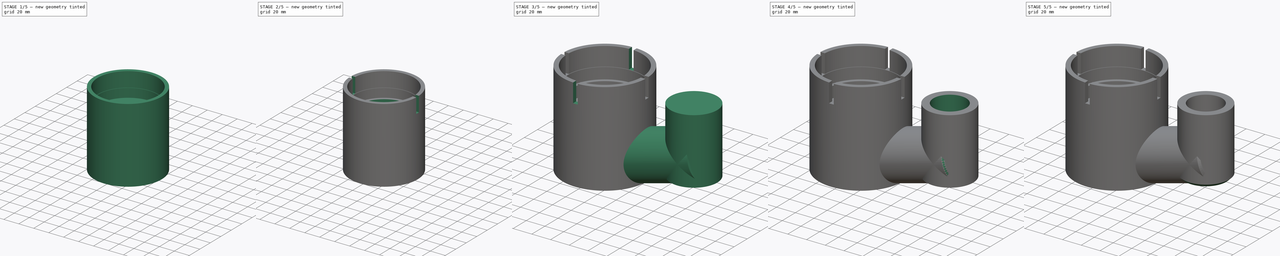
[diagram: build sequence overview — one tinted view per stage of 5, left to right]
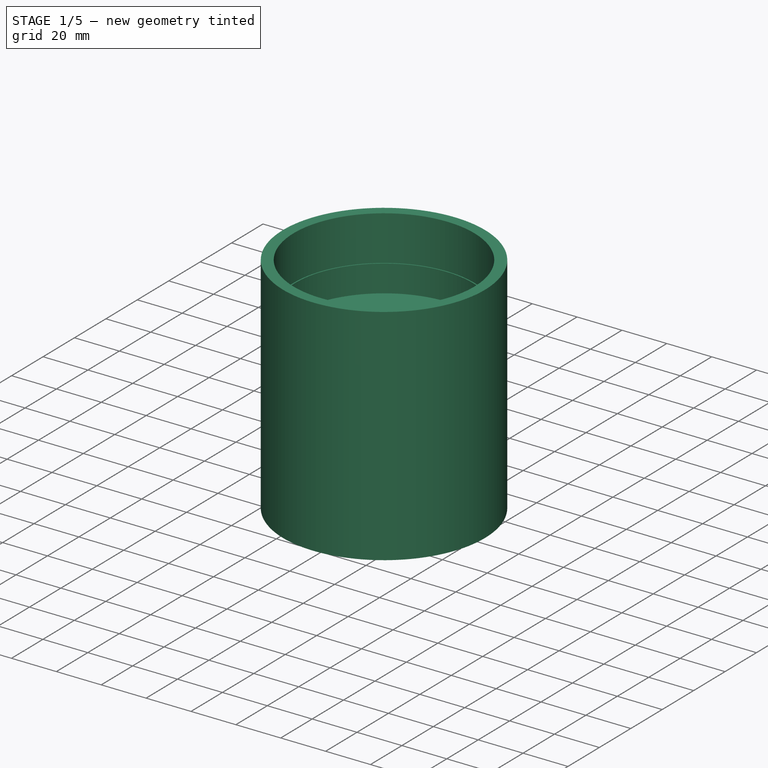
[diagram: stage 1 of 5 — iso view after this stage's code; geometry added in this stage tinted green]
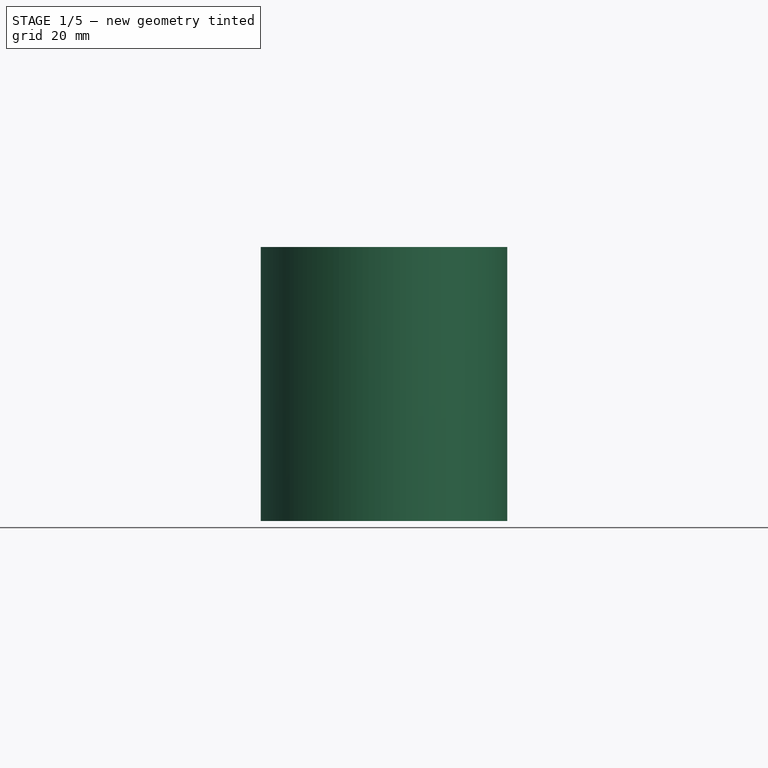
[diagram: stage 1 of 5 — front view after this stage's code; geometry added in this stage tinted green]
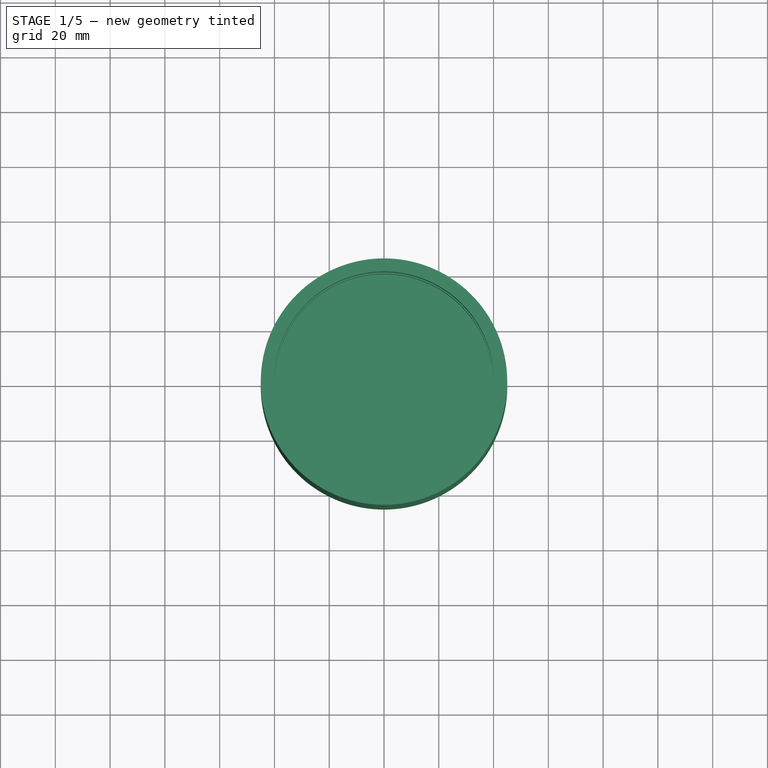
[diagram: stage 1 of 5 — top view after this stage's code; geometry added in this stage tinted green]
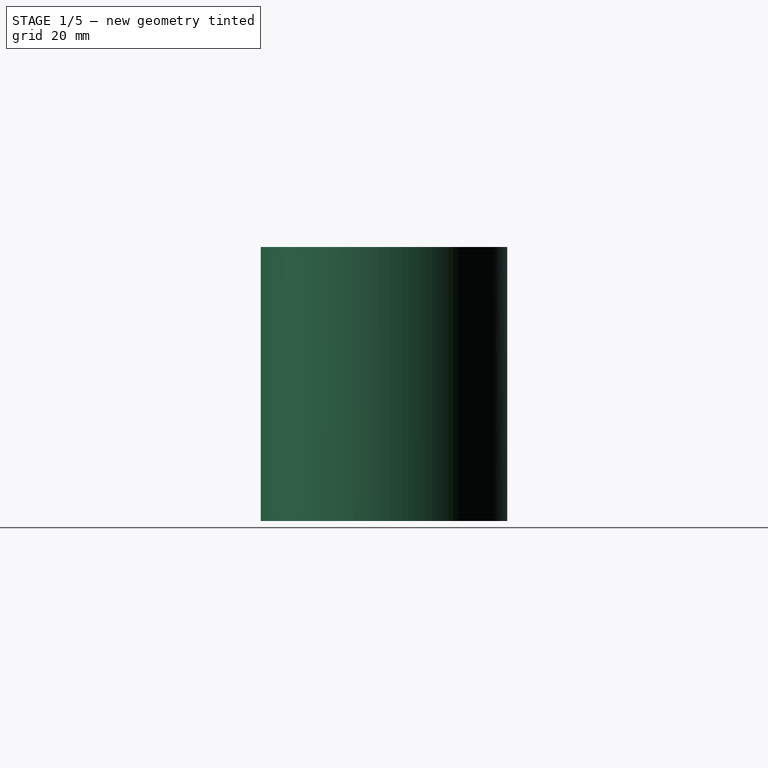
[diagram: stage 1 of 5 — right view after this stage's code; geometry added in this stage tinted green]
FCSTD DOCUMENT  (FreeCAD 0.20R29410 (Git))
Label: aspiration1
License: All rights reserved
LicenseURL: http://en.wikipedia.org/wiki/All_rights_reserved
objects: Sketcher::SketchObject×12, PartDesign::Pocket×9, PartDesign::Plane×4, PartDesign::Chamfer×4, PartDesign::Pad×3, PartDesign::Body×1
note: 49 computed .brp shape members not serialized (recipe doc carries the construction recipe); baked Part::Feature solids carry a one-line shape summary decoded from their .brp

FEATURE [Sketcher::SketchObject] Sketch
  FullyConstrained = true
  MapMode = 5
  Support = -> [XY_Plane]
  sketch-geometry (1):
    g0: Circle CenterX=0 CenterY=0 CenterZ=0 NormalX=0 NormalY=0 NormalZ=1 AngleXU=0 Radius=45
  constraints (2):
    c: Coincident(g0,g-1)
    c: Diameter(g0) = 90
FEATURE [PartDesign::Pad] Pad
  Direction = (0,0,1)
  Length = 100
  Length2 = 10
  Profile = -> Sketch
  ReferenceAxis = -> Sketch [N_Axis]
  Type = 0
FEATURE [Sketcher::SketchObject] Sketch001
  FullyConstrained = true
  MapMode = 5
  Placement = pos=(0,0,100) rot=(0,0,1;0rad)
  Support = -> [Pad]
  sketch-geometry (1):
    g0: Circle CenterX=0 CenterY=0 CenterZ=0 NormalX=0 NormalY=0 NormalZ=1 AngleXU=0 Radius=40.25
  constraints (2):
    c: Coincident(g0,g-1)
    c: Diameter(g0) = 80.5
FEATURE [PartDesign::Pocket] Pocket
  BaseFeature = -> Pad
  Direction = (0,0,-1)
  Length = 20
  Length2 = 5
  Profile = -> Sketch001
  ReferenceAxis = -> Sketch001 [N_Axis]
  Type = 0
FEATURE [Sketcher::SketchObject] Sketch002
  FullyConstrained = true
  MapMode = 5
  Placement = pos=(0,0,80) rot=(0,0,1;0rad)
  Support = -> [Pocket]
  sketch-geometry (1):
    g0: Circle CenterX=0 CenterY=0 CenterZ=0 NormalX=0 NormalY=0 NormalZ=1 AngleXU=0 Radius=39.75
  constraints (2):
    c: Coincident(g0,g-1)
    c: Diameter(g0) = 79.5
FEATURE [PartDesign::Pocket] Pocket001
  BaseFeature = -> Pocket
  Direction = (0,0,-1)
  Length = 12
  Length2 = 5
  Profile = -> Sketch002
  ReferenceAxis = -> Sketch002 [N_Axis]
  Type = 0
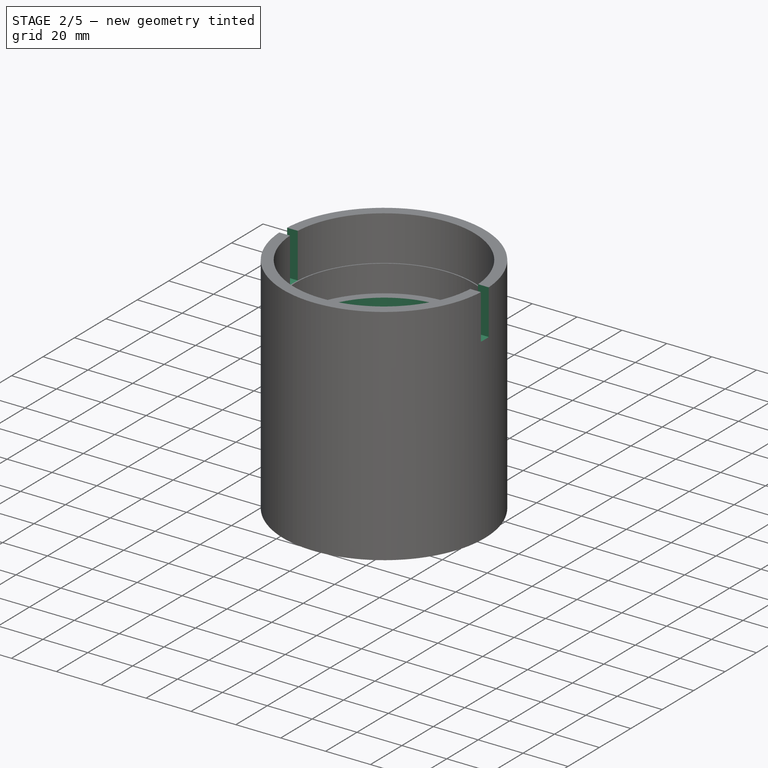
[diagram: stage 2 of 5 — iso view after this stage's code; geometry added in this stage tinted green]
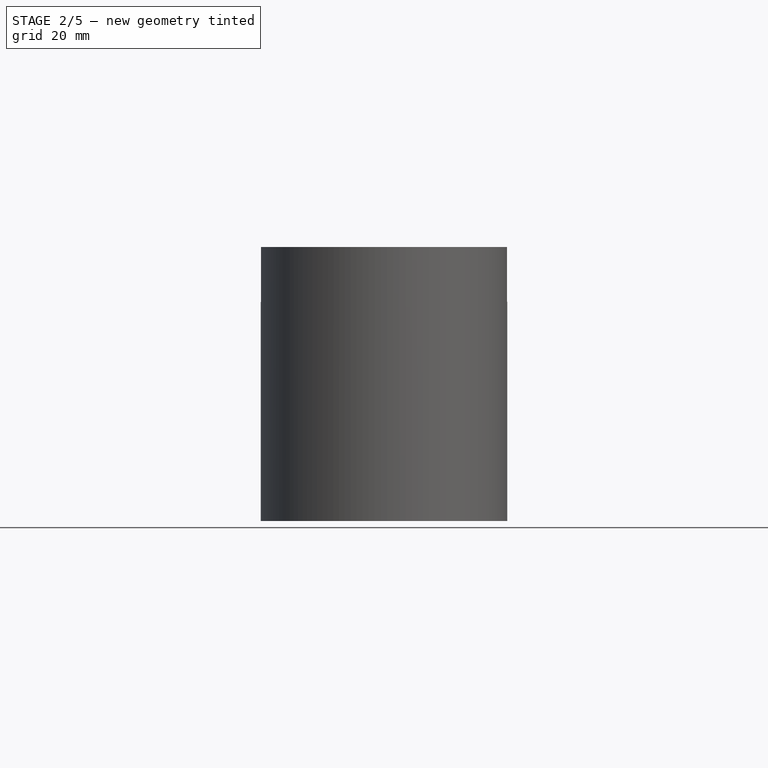
[diagram: stage 2 of 5 — front view after this stage's code; geometry added in this stage tinted green]
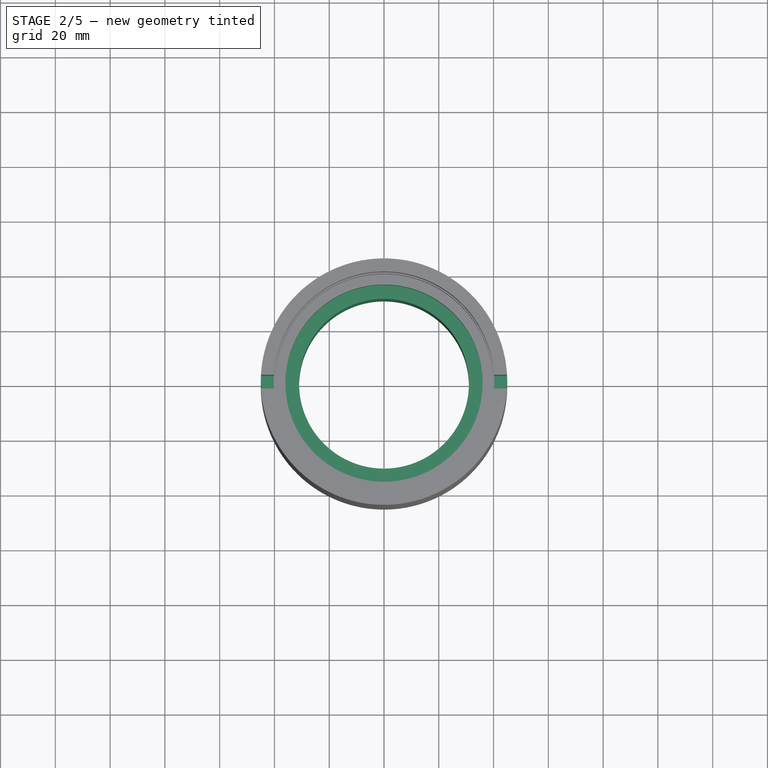
[diagram: stage 2 of 5 — top view after this stage's code; geometry added in this stage tinted green]
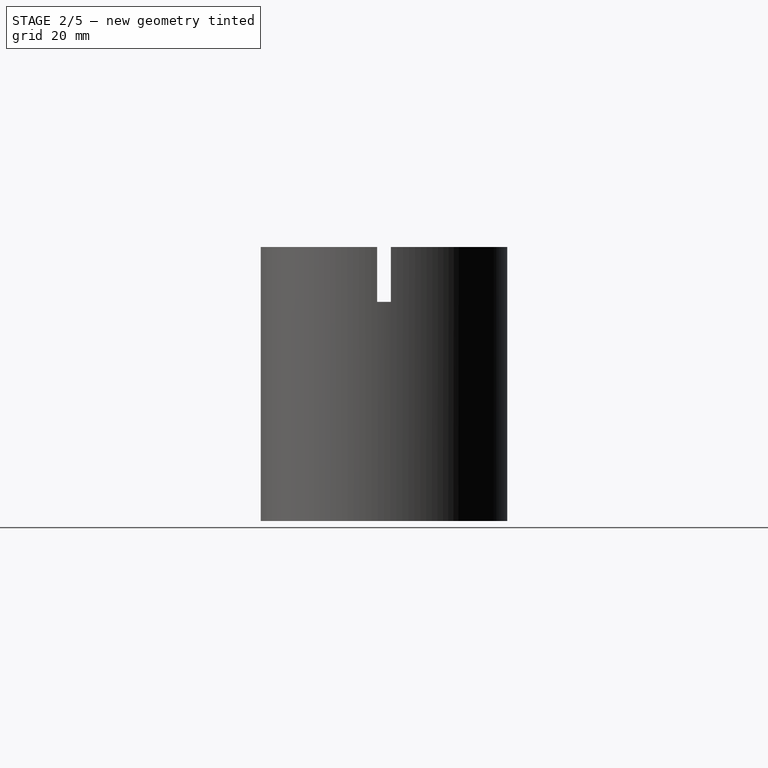
[diagram: stage 2 of 5 — right view after this stage's code; geometry added in this stage tinted green]
FEATURE [Sketcher::SketchObject] Sketch003
  FullyConstrained = true
  MapMode = 5
  Placement = pos=(0,0,68) rot=(0,0,1;0rad)
  Support = -> [Pocket001]
  sketch-geometry (1):
    g0: Circle CenterX=0 CenterY=0 CenterZ=0 NormalX=0 NormalY=0 NormalZ=1 AngleXU=0 Radius=36
  constraints (2):
    c: Coincident(g0,g-1)
    c: Diameter(g0) = 72
FEATURE [PartDesign::Pocket] Pocket002
  BaseFeature = -> Pocket001
  Direction = (0,0,-1)
  Length = 12
  Length2 = 5
  Profile = -> Sketch003
  ReferenceAxis = -> Sketch003 [N_Axis]
  Type = 0
FEATURE [Sketcher::SketchObject] Sketch004
  FullyConstrained = true
  MapMode = 5
  Placement = pos=(0,0,56) rot=(0,0,1;0rad)
  Support = -> [Pocket002]
  sketch-geometry (1):
    g0: Circle CenterX=0 CenterY=0 CenterZ=0 NormalX=0 NormalY=0 NormalZ=1 AngleXU=0 Radius=31
  constraints (2):
    c: Coincident(g0,g-1)
    c: Diameter(g0) = 62
FEATURE [PartDesign::Pocket] Pocket003
  BaseFeature = -> Pocket002
  Direction = (0,0,-1)
  Length = 5
  Length2 = 5
  Profile = -> Sketch004
  ReferenceAxis = -> Sketch004 [N_Axis]
  Type = 1
FEATURE [PartDesign::Plane] DatumPlane
  Length = 111.213
  MapMode = 10
  Placement = pos=(45,0,100) rot=(0.57735,0.57735,0.57735;2.0944rad)
  ResizeMode = 0
  Support = -> [Pocket003]
  Width = 146.213
FEATURE [Sketcher::SketchObject] Sketch005
  FullyConstrained = true
  MapMode = 5
  Placement = pos=(45,0,100) rot=(0.57735,0.57735,0.57735;2.0944rad)
  Support = -> [DatumPlane]
  sketch-geometry (4):
    g0: LineSegment StartX=-2.5 StartY=0 StartZ=0 EndX=2.5 EndY=0 EndZ=0
    g1: LineSegment StartX=2.5 StartY=0 StartZ=0 EndX=2.5 EndY=-20 EndZ=0
    g2: LineSegment StartX=2.5 StartY=-20 StartZ=0 EndX=-2.5 EndY=-20 EndZ=0
    g3: LineSegment StartX=-2.5 StartY=-20 StartZ=0 EndX=-2.5 EndY=0 EndZ=0
  constraints (11):
    c: Coincident(g0,g1)
    c: Coincident(g1,g2)
    c: Coincident(g2,g3)
    c: Coincident(g3,g0)
    c: Horizontal(g2)
    c: Vertical(g1)
    c: Vertical(g3)
    c: PointOnObject(g0,g-1)
    c: Symmetric(g0,g0,g-2)
    c: DistanceX(g2,g2) = 5
    c: DistanceY(g1,g1) = 20
FEATURE [PartDesign::Pocket] Pocket004
  BaseFeature = -> Pocket003
  Direction = (-1,0,0)
  Length = 5
  Length2 = 5
  Profile = -> Sketch005
  ReferenceAxis = -> Sketch005 [N_Axis]
  Type = 1
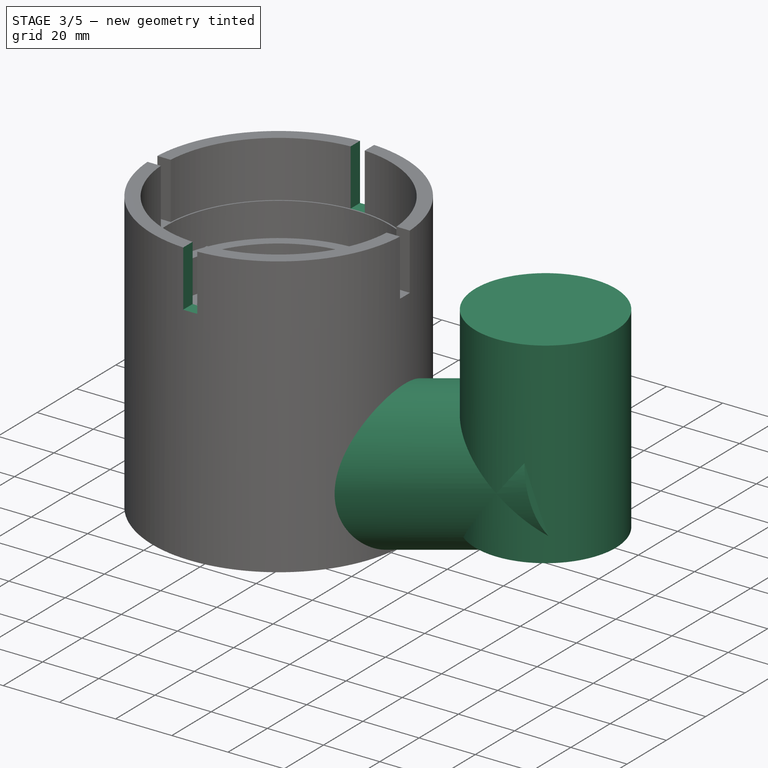
[diagram: stage 3 of 5 — iso view after this stage's code; geometry added in this stage tinted green]
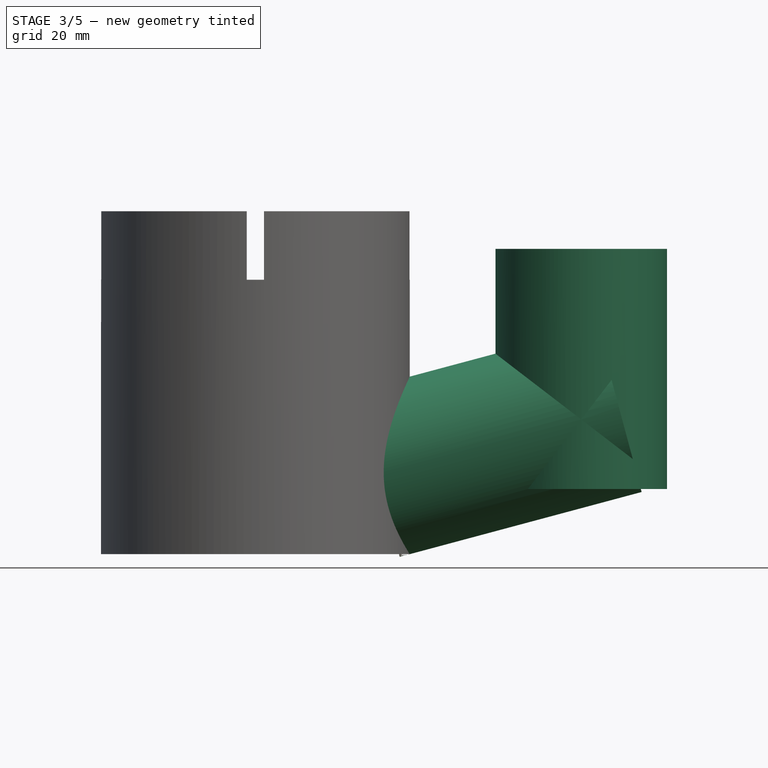
[diagram: stage 3 of 5 — front view after this stage's code; geometry added in this stage tinted green]
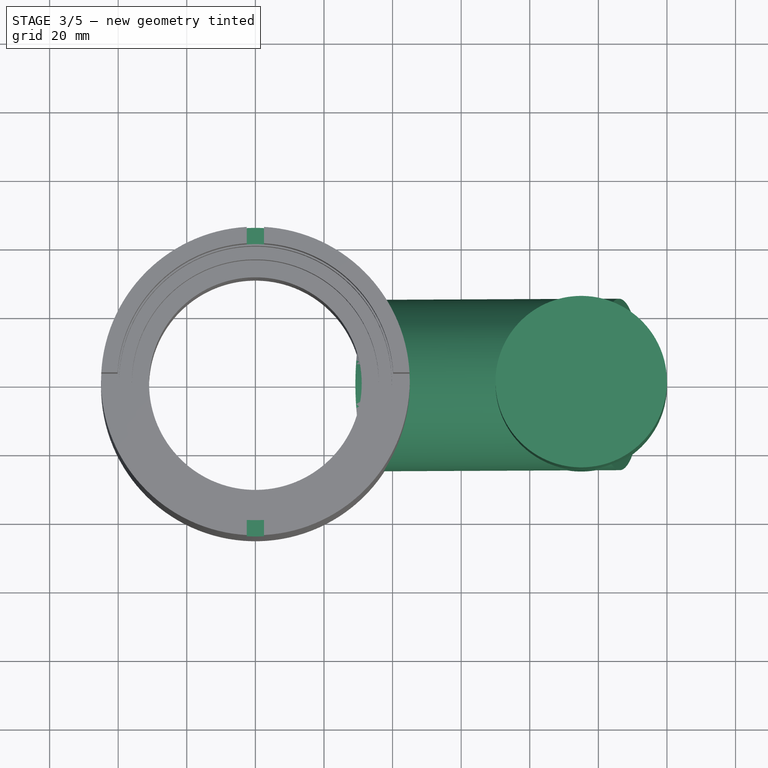
[diagram: stage 3 of 5 — top view after this stage's code; geometry added in this stage tinted green]
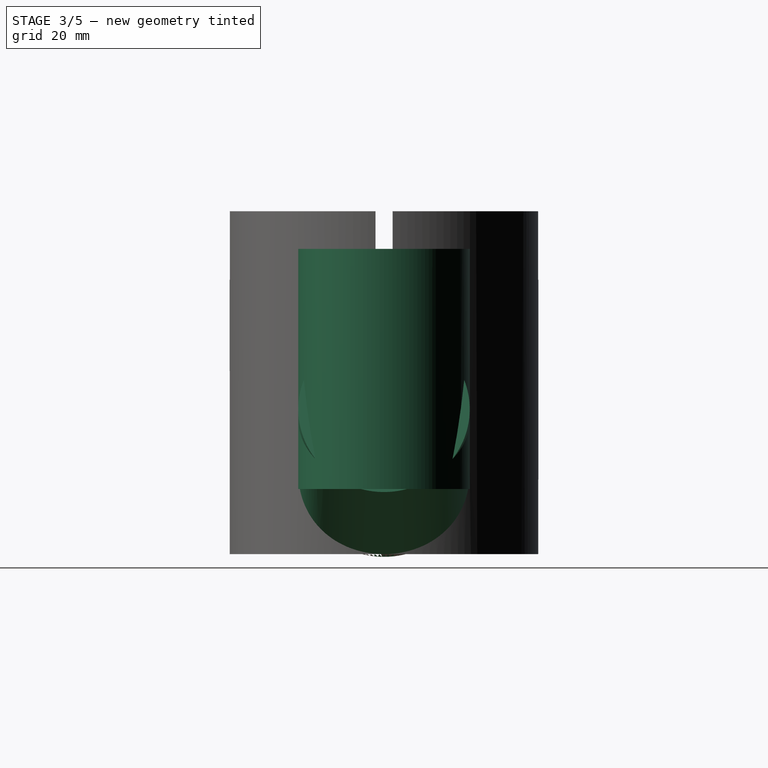
[diagram: stage 3 of 5 — right view after this stage's code; geometry added in this stage tinted green]
FEATURE [PartDesign::Plane] DatumPlane001
  AttachmentOffset = pos=(45,0,0) rot=(0,1,0;1.5708rad)
  Length = 193.723
  MapMode = 5
  Placement = pos=(45,-45,100) rot=(1,0,0;1.5708rad)
  ResizeMode = 0
  Support = -> [DatumPlane]
  Width = 153.723
FEATURE [Sketcher::SketchObject] Sketch006
  FullyConstrained = true
  MapMode = 5
  Placement = pos=(45,-45,100) rot=(1,0,0;1.5708rad)
  Support = -> [DatumPlane001]
  sketch-geometry (4):
    g0: LineSegment StartX=-47.5 StartY=0 StartZ=0 EndX=-42.5 EndY=0 EndZ=0
    g1: LineSegment StartX=-42.5 StartY=0 StartZ=0 EndX=-42.5 EndY=-20 EndZ=0
    g2: LineSegment StartX=-42.5 StartY=-20 StartZ=0 EndX=-47.5 EndY=-20 EndZ=0
    g3: LineSegment StartX=-47.5 StartY=-20 StartZ=0 EndX=-47.5 EndY=0 EndZ=0
  constraints (12):
    c: Coincident(g0,g1)
    c: Coincident(g1,g2)
    c: Coincident(g2,g3)
    c: Coincident(g3,g0)
    c: Horizontal(g0)
    c: Horizontal(g2)
    c: Vertical(g1)
    c: Vertical(g3)
    c: PointOnObject(g0,g-1)
    c: DistanceX(g0,g0) = 5
    c: DistanceY(g1,g1) = 20
    c: DistanceX(g0,g-1) = 42.5
FEATURE [PartDesign::Pocket] Pocket005
  BaseFeature = -> Pocket004
  Direction = (2e-16,1,2e-16)
  Length = 5
  Length2 = 5
  Profile = -> Sketch006
  ReferenceAxis = -> Sketch006 [N_Axis]
  Type = 1
FEATURE [PartDesign::Plane] DatumPlane002
  AttachmentOffset = pos=(0,0,0) rot=(-1,0,0;0.261799rad)
  Length = 114.257
  MapMode = 10
  Placement = pos=(45,0,0) rot=(0.519988,0.519988,0.677661;1.95044rad)
  ResizeMode = 0
  Support = -> [Pocket005]
  Width = 187.703
FEATURE [Sketcher::SketchObject] Sketch007
  FullyConstrained = true
  MapMode = 5
  Placement = pos=(45,0,-1.8e-15) rot=(0.519988,0.519988,0.677661;1.95044rad)
  Support = -> [DatumPlane002]
  sketch-geometry (1):
    g0: Circle CenterX=0 CenterY=25 CenterZ=0 NormalX=0 NormalY=0 NormalZ=1 AngleXU=0 Radius=25
  constraints (3):
    c: PointOnObject(g0,g-2)
    c: PointOnObject(g-1,g0)
    c: Diameter(g0) = 50
FEATURE [PartDesign::Pad] Pad001
  BaseFeature = -> Pocket005
  Direction = (0.965926,-1e-16,0.258819)
  Length = 70
  Length2 = 3
  Profile = -> Sketch007
  ReferenceAxis = -> Sketch007 [N_Axis]
  Type = 4
FEATURE [PartDesign::Plane] DatumPlane003
  AttachmentOffset = pos=(0,0,-19) rot=(0,0,1;0rad)
  Length = 189.372
  MapMode = 5
  Placement = pos=(0,0,19) rot=(1,0,0;3.14159rad)
  ResizeMode = 0
  Support = -> [Pad001]
  Width = 114.372
FEATURE [Sketcher::SketchObject] Sketch009
  FullyConstrained = true
  MapMode = 5
  Placement = pos=(0,0,19) rot=(1,0,0;3.14159rad)
  Support = -> [DatumPlane003]
  sketch-geometry (1):
    g0: Circle CenterX=95 CenterY=0 CenterZ=0 NormalX=0 NormalY=0 NormalZ=1 AngleXU=0 Radius=25
  constraints (3):
    c: PointOnObject(g0,g-1)
    c: Diameter(g0) = 50
    c: DistanceX(g-1,g0) = 95
FEATURE [PartDesign::Pad] Pad002
  BaseFeature = -> Pad001
  Direction = (0,0,-1)
  Length = 70
  Length2 = 10
  Profile = -> Sketch009
  ReferenceAxis = -> Sketch009 [N_Axis]
  Reversed = true
  Type = 0
FEATURE [Sketcher::SketchObject] Sketch012
  FullyConstrained = true
  MapMode = 5
  Placement = pos=(0,0,0) rot=(1,0,0;3.14159rad)
  sketch-geometry (89):
    g0: Circle CenterX=0 CenterY=41.5 CenterZ=0 NormalX=0 NormalY=0 NormalZ=1 AngleXU=0 Radius=1.5
    g1: Circle CenterX=0 CenterY=0 CenterZ=0 NormalX=0 NormalY=0 NormalZ=1 AngleXU=0 Radius=41.5
    g2: Circle CenterX=0 CenterY=0 CenterZ=0 NormalX=0 NormalY=0 NormalZ=1 AngleXU=0 Radius=35
    g3: Circle CenterX=5.9843 CenterY=41.0663 CenterZ=0 NormalX=0 NormalY=0 NormalZ=1 AngleXU=0 Radius=1.5
    g4: Circle CenterX=11.8435 CenterY=39.7741 CenterZ=0 NormalX=0 NormalY=0 NormalZ=1 AngleXU=0 Radius=1.5
    g5: Circle CenterX=17.4552 CenterY=37.6506 CenterZ=0 NormalX=0 NormalY=0 NormalZ=1 AngleXU=0 Radius=1.5
    g6: Circle CenterX=22.702 CenterY=34.7401 CenterZ=0 NormalX=0 NormalY=0 NormalZ=1 AngleXU=0 Radius=1.5
    g7: Circle CenterX=27.4742 CenterY=31.1033 CenterZ=0 NormalX=0 NormalY=0 NormalZ=1 AngleXU=0 Radius=1.5
    g8: Circle CenterX=31.6722 CenterY=26.8165 CenterZ=0 NormalX=0 NormalY=0 NormalZ=1 AngleXU=0 Radius=1.5
    g9: Circle CenterX=35.2081 CenterY=21.9691 CenterZ=0 NormalX=0 NormalY=0 NormalZ=1 AngleXU=0 Radius=1.5
    g10: Circle CenterX=38.008 CenterY=16.6625 CenterZ=0 NormalX=0 NormalY=0 NormalZ=1 AngleXU=0 Radius=1.5
    g11: Circle CenterX=40.0135 CenterY=11.0076 CenterZ=0 NormalX=0 NormalY=0 NormalZ=1 AngleXU=0 Radius=1.5
    g12: Circle CenterX=41.1826 CenterY=5.12257 CenterZ=0 NormalX=0 NormalY=0 NormalZ=1 AngleXU=0 Radius=1.5
    g13: Circle CenterX=41.4909 CenterY=-0.869507 CenterZ=0 NormalX=0 NormalY=0 NormalZ=1 AngleXU=0 Radius=1.5
    g14: Circle CenterX=40.9319 CenterY=-6.84341 CenterZ=0 NormalX=0 NormalY=0 NormalZ=1 AngleXU=0 Radius=1.5
    g15: Circle CenterX=39.5173 CenterY=-12.6743 CenterZ=0 NormalX=0 NormalY=0 NormalZ=1 AngleXU=0 Radius=1.5
    g16: Circle CenterX=37.2766 CenterY=-18.2402 CenterZ=0 NormalX=0 NormalY=0 NormalZ=1 AngleXU=0 Radius=1.5
    g17: Circle CenterX=34.2568 CenterY=-23.4248 CenterZ=0 NormalX=0 NormalY=0 NormalZ=1 AngleXU=0 Radius=1.5
    g18: Circle CenterX=30.5209 CenterY=-28.1198 CenterZ=0 NormalX=0 NormalY=0 NormalZ=1 AngleXU=0 Radius=1.5
    g19: Circle CenterX=26.147 CenterY=-32.2271 CenterZ=0 NormalX=0 NormalY=0 NormalZ=1 AngleXU=0 Radius=1.5
    g20: Circle CenterX=21.2266 CenterY=-35.6606 CenterZ=0 NormalX=0 NormalY=0 NormalZ=1 AngleXU=0 Radius=1.5
    g21: Circle CenterX=15.8625 CenterY=-38.3488 CenterZ=0 NormalX=0 NormalY=0 NormalZ=1 AngleXU=0 Radius=1.5
    g22: Circle CenterX=10.1668 CenterY=-40.2354 CenterZ=0 NormalX=0 NormalY=0 NormalZ=1 AngleXU=0 Radius=1.5
    g23: Circle CenterX=4.25859 CenterY=-41.2809 CenterZ=0 NormalX=0 NormalY=0 NormalZ=1 AngleXU=0 Radius=1.5
    g24: Circle CenterX=-1.73863 CenterY=-41.4636 CenterZ=0 NormalX=0 NormalY=0 NormalZ=1 AngleXU=0 Radius=1.5
    g25: Circle CenterX=-7.69951 CenterY=-40.7795 CenterZ=0 NormalX=0 NormalY=0 NormalZ=1 AngleXU=0 Radius=1.5
    g26: Circle CenterX=-13.4994 CenterY=-39.243 CenterZ=0 NormalX=0 NormalY=0 NormalZ=1 AngleXU=0 Radius=1.5
    g27: Circle CenterX=2 CenterY=34.9428 CenterZ=0 NormalX=0 NormalY=0 NormalZ=1 AngleXU=0 Radius=1.5
    g28: Circle CenterX=6.95867 CenterY=34.3013 CenterZ=0 NormalX=0 NormalY=0 NormalZ=1 AngleXU=0 Radius=1.5
    g29: Circle CenterX=12.715 CenterY=32.6087 CenterZ=0 NormalX=0 NormalY=0 NormalZ=1 AngleXU=0 Radius=1.5
    g30: Circle CenterX=17.2317 CenterY=30.4642 CenterZ=0 NormalX=0 NormalY=0 NormalZ=1 AngleXU=0 Radius=1.5
    g31: Circle CenterX=22.1818 CenterY=27.0734 CenterZ=0 NormalX=0 NormalY=0 NormalZ=1 AngleXU=0 Radius=1.5
    g32: Circle CenterX=25.8132 CenterY=23.6364 CenterZ=0 NormalX=0 NormalY=0 NormalZ=1 AngleXU=0 Radius=1.5
    g33: Circle CenterX=28.9178 CenterY=19.7171 CenterZ=0 NormalX=0 NormalY=0 NormalZ=1 AngleXU=0 Radius=1.5
    g34: Circle CenterX=31.4322 CenterY=15.3953 CenterZ=0 NormalX=0 NormalY=0 NormalZ=1 AngleXU=0 Radius=1.5
    g35: Circle CenterX=33.3052 CenterY=10.7594 CenterZ=0 NormalX=0 NormalY=0 NormalZ=1 AngleXU=0 Radius=1.5
    g36: Circle CenterX=34.4985 CenterY=5.90385 CenterZ=0 NormalX=0 NormalY=0 NormalZ=1 AngleXU=0 Radius=1.5
    g37: Circle CenterX=34.9877 CenterY=0.927838 CenterZ=0 NormalX=0 NormalY=0 NormalZ=1 AngleXU=0 Radius=1.5
    g38: Circle CenterX=34.7629 CenterY=-4.06711 CenterZ=0 NormalX=0 NormalY=0 NormalZ=1 AngleXU=0 Radius=1.5
    g39: Circle CenterX=33.8286 CenterY=-8.97905 CenterZ=0 NormalX=0 NormalY=0 NormalZ=1 AngleXU=0 Radius=1.5
    g40: Circle CenterX=32.204 CenterY=-13.7077 CenterZ=0 NormalX=0 NormalY=0 NormalZ=1 AngleXU=0 Radius=1.5
    g41: Circle CenterX=29.9221 CenterY=-18.1567 CenterZ=0 NormalX=0 NormalY=0 NormalZ=1 AngleXU=0 Radius=1.5
    g42: Circle CenterX=27.0296 CenterY=-22.2351 CenterZ=0 NormalX=0 NormalY=0 NormalZ=1 AngleXU=0 Radius=1.5
    g43: Circle CenterX=23.5855 CenterY=-25.8597 CenterZ=0 NormalX=0 NormalY=0 NormalZ=1 AngleXU=0 Radius=1.5
    g44: Circle CenterX=19.66 CenterY=-28.9566 CenterZ=0 NormalX=0 NormalY=0 NormalZ=1 AngleXU=0 Radius=1.5
    g45: Circle CenterX=14.4254 CenterY=-31.889 CenterZ=0 NormalX=0 NormalY=0 NormalZ=1 AngleXU=0 Radius=1.5
    g46: Circle CenterX=9.73428 CenterY=-33.6191 CenterZ=0 NormalX=0 NormalY=0 NormalZ=1 AngleXU=0 Radius=1.5
    g47: Circle CenterX=4.84449 CenterY=-34.6631 CenterZ=0 NormalX=0 NormalY=0 NormalZ=1 AngleXU=0 Radius=1.5
    g48: Circle CenterX=-0.144168 CenterY=-34.9997 CenterZ=0 NormalX=0 NormalY=0 NormalZ=1 AngleXU=0 Radius=1.5
    g49: Circle CenterX=-5.12988 CenterY=-34.622 CenterZ=0 NormalX=0 NormalY=0 NormalZ=1 AngleXU=0 Radius=1.5
    g50: Circle CenterX=-10.0109 CenterY=-33.5378 CenterZ=0 NormalX=0 NormalY=0 NormalZ=1 AngleXU=0 Radius=1.5
    g51: Circle CenterX=-19.0172 CenterY=-36.8863 CenterZ=0 NormalX=0 NormalY=0 NormalZ=1 AngleXU=0 Radius=1.5
    g52: Circle CenterX=-24.1374 CenterY=-33.7585 CenterZ=0 NormalX=0 NormalY=0 NormalZ=1 AngleXU=0 Radius=1.5
    g53: Circle CenterX=-28.7531 CenterY=-29.925 CenterZ=0 NormalX=0 NormalY=0 NormalZ=1 AngleXU=0 Radius=1.5
    g54: Circle CenterX=-32.7678 CenterY=-25.4661 CenterZ=0 NormalX=0 NormalY=0 NormalZ=1 AngleXU=0 Radius=1.5
    g55: Circle CenterX=-36.0976 CenterY=-20.4748 CenterZ=0 NormalX=0 NormalY=0 NormalZ=1 AngleXU=0 Radius=1.5
    g56: Circle CenterX=-38.6728 CenterY=-15.0555 CenterZ=0 NormalX=0 NormalY=0 NormalZ=1 AngleXU=0 Radius=1.5
    g57: Circle CenterX=-40.4396 CenterY=-9.32155 CenterZ=0 NormalX=0 NormalY=0 NormalZ=1 AngleXU=0 Radius=1.5
    g58: Circle CenterX=-41.3611 CenterY=-3.39273 CenterZ=0 NormalX=0 NormalY=0 NormalZ=1 AngleXU=0 Radius=1.5
    g59: Circle CenterX=-41.418 CenterY=2.607 CenterZ=0 NormalX=0 NormalY=0 NormalZ=1 AngleXU=0 Radius=1.5
    g60: Circle CenterX=-33.2453 CenterY=24.8395 CenterZ=0 NormalX=0 NormalY=0 NormalZ=1 AngleXU=0 Radius=1.5
    g61: Circle CenterX=-40.6092 CenterY=8.55223 CenterZ=0 NormalX=0 NormalY=0 NormalZ=1 AngleXU=0 Radius=1.5
    g62: Circle CenterX=-38.9516 CenterY=14.3187 CenterZ=0 NormalX=0 NormalY=0 NormalZ=1 AngleXU=0 Radius=1.5
    g63: Circle CenterX=-36.4797 CenterY=19.7859 CenterZ=0 NormalX=0 NormalY=0 NormalZ=1 AngleXU=0 Radius=1.5
    g64: Circle CenterX=-29.316 CenterY=29.3738 CenterZ=0 NormalX=0 NormalY=0 NormalZ=1 AngleXU=0 Radius=1.5
    g65: Circle CenterX=-24.7739 CenterY=33.2942 CenterZ=0 NormalX=0 NormalY=0 NormalZ=1 AngleXU=0 Radius=1.5
    g66: Circle CenterX=-14.6876 CenterY=-31.7691 CenterZ=0 NormalX=0 NormalY=0 NormalZ=1 AngleXU=0 Radius=1.5
    g67: Circle CenterX=-19.0646 CenterY=-29.352 CenterZ=0 NormalX=0 NormalY=0 NormalZ=1 AngleXU=0 Radius=1.5
    g68: Circle CenterX=-23.0525 CenterY=-26.336 CenterZ=0 NormalX=0 NormalY=0 NormalZ=1 AngleXU=0 Radius=1.5
    g69: Circle CenterX=-26.5699 CenterY=-22.7824 CenterZ=0 NormalX=0 NormalY=0 NormalZ=1 AngleXU=0 Radius=1.5
    g70: Circle CenterX=-29.5451 CenterY=-18.7639 CenterZ=0 NormalX=0 NormalY=0 NormalZ=1 AngleXU=0 Radius=1.5
    g71: Circle CenterX=-31.9174 CenterY=-14.3625 CenterZ=0 NormalX=0 NormalY=0 NormalZ=1 AngleXU=0 Radius=1.5
    g72: Circle CenterX=-33.6382 CenterY=-9.66798 CenterZ=0 NormalX=0 NormalY=0 NormalZ=1 AngleXU=0 Radius=1.5
    g73: Circle CenterX=-34.7952 CenterY=-3.78059 CenterZ=0 NormalX=0 NormalY=0 NormalZ=1 AngleXU=0 Radius=1.5
    g74: Circle CenterX=-34.9789 CenterY=1.21604 CenterZ=0 NormalX=0 NormalY=0 NormalZ=1 AngleXU=0 Radius=1.5
    g75: Circle CenterX=-34.4487 CenterY=6.18785 CenterZ=0 NormalX=0 NormalY=0 NormalZ=1 AngleXU=0 Radius=1.5
    g76: Circle CenterX=-33.2154 CenterY=11.0334 CenterZ=0 NormalX=0 NormalY=0 NormalZ=1 AngleXU=0 Radius=1.5
    g77: Circle CenterX=-31.3043 CenterY=15.6537 CenterZ=0 NormalX=0 NormalY=0 NormalZ=1 AngleXU=0 Radius=1.5
    g78: Circle CenterX=-28.7544 CenterY=19.9546 CenterZ=0 NormalX=0 NormalY=0 NormalZ=1 AngleXU=0 Radius=1.5
    g79: Circle CenterX=-19.714 CenterY=36.5186 CenterZ=0 NormalX=0 NormalY=0 NormalZ=1 AngleXU=0 Radius=1.5
    g80: Circle CenterX=-14.2419 CenterY=38.9797 CenterZ=0 NormalX=0 NormalY=0 NormalZ=1 AngleXU=0 Radius=1.5
    g81: Circle CenterX=-8.47221 CenterY=40.626 CenterZ=0 NormalX=0 NormalY=0 NormalZ=1 AngleXU=0 Radius=1.5
    g82: Circle CenterX=-4.02365 CenterY=41.3045 CenterZ=0 NormalX=0 NormalY=0 NormalZ=1 AngleXU=0 Radius=1.5
    g83: Circle CenterX=-25.9698 CenterY=23.4642 CenterZ=0 NormalX=0 NormalY=0 NormalZ=1 AngleXU=0 Radius=1.5
    g84: Circle CenterX=-22.4769 CenterY=26.8289 CenterZ=0 NormalX=0 NormalY=0 NormalZ=1 AngleXU=0 Radius=1.5
    g85: Circle CenterX=-18.3222 CenterY=29.8211 CenterZ=0 NormalX=0 NormalY=0 NormalZ=1 AngleXU=0 Radius=1.5
    g86: Circle CenterX=-14.0973 CenterY=32.0354 CenterZ=0 NormalX=0 NormalY=0 NormalZ=1 AngleXU=0 Radius=1.5
    g87: Circle CenterX=-9.51413 CenterY=33.6821 CenterZ=0 NormalX=0 NormalY=0 NormalZ=1 AngleXU=0 Radius=1.5
    g88: Circle CenterX=-4.12013 CenterY=34.7566 CenterZ=0 NormalX=0 NormalY=0 NormalZ=1 AngleXU=0 Radius=1.5
  constraints (265):
    c: Diameter(g0) = 3
    c: Coincident(g1,g-1)
    c: Coincident(g2,g1)
    c: Diameter(g1) = 83
    c: Diameter(g2) = 70
    c: PointOnObject(g0,g1)
    c: Equal(g0,g3) = 3
    c: PointOnObject(g3,g1)
    c: Distance(g0,g3) = 6
    c: PointOnObject(g0,g-2)
    c: PointOnObject(g4,g1)
    c: Distance(g3,g4) = 6
    c: Equal(g4,g3)
    c: PointOnObject(g5,g1)
    c: Distance(g4,g5) = 6
    c: Equal(g5,g0)
    c: PointOnObject(g6,g1)
    c: Equal(g6,g0)
    c: Distance(g6,g5) = 6
    c: Equal(g0,g7) = 3
    c: PointOnObject(g7,g1)
    c: Equal(g0,g8) = 3
    c: PointOnObject(g8,g1)
    c: Equal(g0,g9) = 3
    c: PointOnObject(g9,g1)
    c: Equal(g0,g10) = 3
    c: PointOnObject(g10,g1)
    c: Distance(g7,g6) = 6
    c: Distance(g8,g7) = 6
    c: Distance(g9,g8) = 6
    c: Distance(g10,g9) = 6
    c: Equal(g0,g11) = 3
    c: PointOnObject(g11,g1)
    c: Equal(g0,g12) = 3
    c: PointOnObject(g12,g1)
    c: Equal(g0,g13) = 3
    c: PointOnObject(g13,g1)
    c: Equal(g0,g14) = 3
    c: PointOnObject(g14,g1)
    c: Distance(g11,g10) = 6
    c: Distance(g12,g11) = 6
    c: Distance(g13,g12) = 6
    c: Distance(g14,g13) = 6
    c: Equal(g0,g15) = 3
    c: PointOnObject(g15,g1)
    c: Equal(g0,g16) = 3
    c: PointOnObject(g16,g1)
    c: Equal(g0,g17) = 3
    c: PointOnObject(g17,g1)
    c: Equal(g0,g18) = 3
    c: PointOnObject(g18,g1)
    c: Equal(g0,g19) = 3
    c: PointOnObject(g19,g1)
    c: Equal(g0,g20) = 3
    c: PointOnObject(g20,g1)
    c: Equal(g0,g21) = 3
    c: PointOnObject(g21,g1)
    c: Equal(g0,g22) = 3
    c: PointOnObject(g22,g1)
    c: Equal(g0,g23) = 3
    c: PointOnObject(g23,g1)
    c: Equal(g0,g24) = 3
    c: PointOnObject(g24,g1)
    c: Equal(g0,g25) = 3
    c: PointOnObject(g25,g1)
    c: Equal(g0,g26) = 3
    c: PointOnObject(g26,g1)
    c: Distance(g15,g14) = 6
    c: Distance(g16,g15) = 6
    c: Distance(g17,g16) = 6
    c: Distance(g18,g17) = 6
    c: Distance(g19,g18) = 6
    c: Distance(g19,g20) = 6
    c: Distance(g21,g20) = 6
    c: Distance(g22,g21) = 6
    c: Distance(g23,g22) = 6
    c: Distance(g24,g23) = 6
    c: Distance(g25,g24) = 6
    c: Distance(g26,g25) = 6
    c: Equal(g0,g27) = 3
    c: Equal(g0,g28) = 3
    c: PointOnObject(g28,g2)
    c: Equal(g0,g29) = 3
    c: PointOnObject(g29,g2)
    c: Equal(g0,g30) = 3
    c: PointOnObject(g30,g2)
    c: Distance(g27,g28) = 5
    c: Distance(g29,g28) = 6
    c: Distance(g30,g29) = 5
    c: Equal(g0,g31) = 3
    c: PointOnObject(g31,g2)
    c: Equal(g0,g32) = 3
    c: PointOnObject(g32,g2)
    c: Equal(g0,g33) = 3
    c: PointOnObject(g33,g2)
    c: Equal(g0,g34) = 3
    c: PointOnObject(g34,g2)
    c: Equal(g0,g35) = 3
    c: PointOnObject(g35,g2)
    c: Distance(g31,g30) = 6
    c: Distance(g32,g31) = 5
    c: Distance(g33,g32) = 5
    c: Distance(g34,g33) = 5
    c: Distance(g35,g34) = 5
    c: Equal(g0,g36) = 3
    c: PointOnObject(g36,g2)
    c: Equal(g0,g37) = 3
    c: PointOnObject(g37,g2)
    c: Equal(g0,g38) = 3
    c: PointOnObject(g38,g2)
    c: Equal(g0,g39) = 3
    c: PointOnObject(g39,g2)
    c: Equal(g0,g40) = 3
    c: PointOnObject(g40,g2)
    c: Equal(g0,g41) = 3
    c: PointOnObject(g41,g2)
    c: Equal(g0,g42) = 3
    c: PointOnObject(g42,g2)
    c: Distance(g36,g35) = 5
    c: Distance(g37,g36) = 5
    c: Distance(g38,g37) = 5
    c: Distance(g39,g38) = 5
    c: Distance(g40,g39) = 5
    c: Distance(g41,g40) = 5
    c: Distance(g42,g41) = 5
    c: Equal(g0,g43) = 3
    c: PointOnObject(g43,g2)
    c: Equal(g0,g44) = 3
    c: PointOnObject(g44,g2)
    c: Equal(g0,g45) = 3
    c: PointOnObject(g45,g2)
    c: Equal(g0,g46) = 3
    c: PointOnObject(g46,g2)
    c: Equal(g0,g47) = 3
    c: PointOnObject(g47,g2)
    c: Equal(g0,g48) = 3
    c: PointOnObject(g48,g2)
    c: Equal(g0,g49) = 3
    c: PointOnObject(g49,g2)
    c: Equal(g0,g50) = 3
    c: PointOnObject(g50,g2)
    c: Distance(g43,g42) = 5
    c: Distance(g44,g43) = 5
    c: Distance(g45,g44) = 6
    c: Distance(g46,g45) = 5
    c: Distance(g47,g46) = 5
    c: Distance(g48,g47) = 5
    c: Distance(g48,g49) = 5
    c: Distance(g49,g50) = 5
    c: Equal(g0,g51) = 3
    c: PointOnObject(g51,g1)
    c: Equal(g0,g52) = 3
    c: PointOnObject(g52,g1)
    c: Equal(g0,g53) = 3
    c: PointOnObject(g53,g1)
    c: Equal(g0,g54) = 3
    c: PointOnObject(g54,g1)
    c: Equal(g0,g55) = 3
    c: PointOnObject(g55,g1)
    c: Equal(g0,g56) = 3
    c: PointOnObject(g56,g1)
    c: Equal(g0,g57) = 3
    c: PointOnObject(g57,g1)
    c: Equal(g0,g58) = 3
    c: PointOnObject(g58,g1)
    c: Equal(g0,g59) = 3
    c: PointOnObject(g59,g1)
    c: Equal(g0,g60) = 3
    c: PointOnObject(g60,g1)
    c: Equal(g0,g61) = 3
    c: PointOnObject(g61,g1)
    c: Equal(g0,g62) = 3
    c: PointOnObject(g62,g1)
    c: Equal(g0,g63) = 3
    c: PointOnObject(g63,g1)
    c: Equal(g0,g64) = 3
    c: PointOnObject(g64,g1)
    c: Equal(g0,g65) = 3
    c: PointOnObject(g65,g1)
    c: Equal(g0,g66) = 3
    c: PointOnObject(g66,g2)
    c: Equal(g0,g67) = 3
    c: PointOnObject(g67,g2)
    c: Equal(g0,g68) = 3
    c: PointOnObject(g68,g2)
    c: Equal(g0,g69) = 3
    c: PointOnObject(g69,g2)
    c: Equal(g0,g70) = 3
    c: PointOnObject(g70,g2)
    c: Equal(g0,g71) = 3
    c: PointOnObject(g71,g2)
    c: Equal(g0,g72) = 3
    c: PointOnObject(g72,g2)
    c: Equal(g0,g73) = 3
    c: PointOnObject(g73,g2)
    c: Distance(g50,g66) = 5
    c: Distance(g66,g67) = 5
    c: Distance(g67,g68) = 5
    c: Distance(g68,g69) = 5
    c: Distance(g69,g70) = 5
    c: Distance(g70,g71) = 5
    c: Distance(g71,g72) = 5
    c: Distance(g72,g73) = 6
    c: Distance(g26,g51) = 6
    c: Distance(g51,g52) = 6
    c: Distance(g52,g53) = 6
    c: Distance(g53,g54) = 6
    c: Distance(g54,g55) = 6
    c: Distance(g55,g56) = 6
    c: Distance(g56,g57) = 6
    c: Distance(g57,g58) = 6
    c: Distance(g58,g59) = 6
    c: Distance(g59,g61) = 6
    c: Distance(g61,g62) = 6
    c: Distance(g62,g63) = 6
    c: Distance(g60,g63) = 6
    c: Distance(g64,g60) = 6
    c: Distance(g65,g64) = 6
    c: Equal(g0,g74) = 3
    c: PointOnObject(g74,g2)
    c: Equal(g0,g75) = 3
    c: PointOnObject(g75,g2)
    c: Equal(g0,g76) = 3
    c: PointOnObject(g76,g2)
    c: Equal(g0,g77) = 3
    c: PointOnObject(g77,g2)
    c: Equal(g0,g78) = 3
    c: PointOnObject(g78,g2)
    c: Distance(g73,g74) = 5
    c: Distance(g74,g75) = 5
    c: Distance(g75,g76) = 5
    c: Distance(g76,g77) = 5
    c: Distance(g77,g78) = 5
    c: Equal(g0,g79) = 3
    c: PointOnObject(g79,g1)
    c: Equal(g0,g80) = 3
    c: PointOnObject(g80,g1)
    c: Equal(g0,g81) = 3
    c: PointOnObject(g81,g1)
    c: Equal(g0,g82) = 3
    c: PointOnObject(g82,g1)
    c: Distance(g65,g79) = 6
    c: Distance(g79,g80) = 6
    c: Distance(g80,g81) = 6
    c: Distance(g81,g82) = 4.5
    c: PointOnObject(g27,g2)
    c: DistanceX(g0,g27) = 2
    c: Equal(g0,g83) = 3
    c: PointOnObject(g83,g2)
    c: Equal(g0,g84) = 3
    c: PointOnObject(g84,g2)
    c: Equal(g0,g85) = 3
    c: PointOnObject(g85,g2)
    c: Equal(g0,g86) = 3
    c: PointOnObject(g86,g2)
    c: Equal(g0,g87) = 3
    c: PointOnObject(g87,g2)
    c: Equal(g0,g88) = 3
    c: PointOnObject(g88,g2)
    c: Distance(g78,g83) = 4.48
    c: Distance(g83,g84) = 4.85
    c: Distance(g85,g84) = 5.12
    c: Distance(g85,g86) = 4.77
    c: Distance(g87,g86) = 4.87
    c: Distance(g87,g88) = 5.5
FEATURE [PartDesign::Pocket] Pocket008
  BaseFeature = -> Pad002
  Direction = (0,0,1)
  Length = 10
  Length2 = 5
  Profile = -> Sketch012
  ReferenceAxis = -> Sketch012 [N_Axis]
  Type = 0
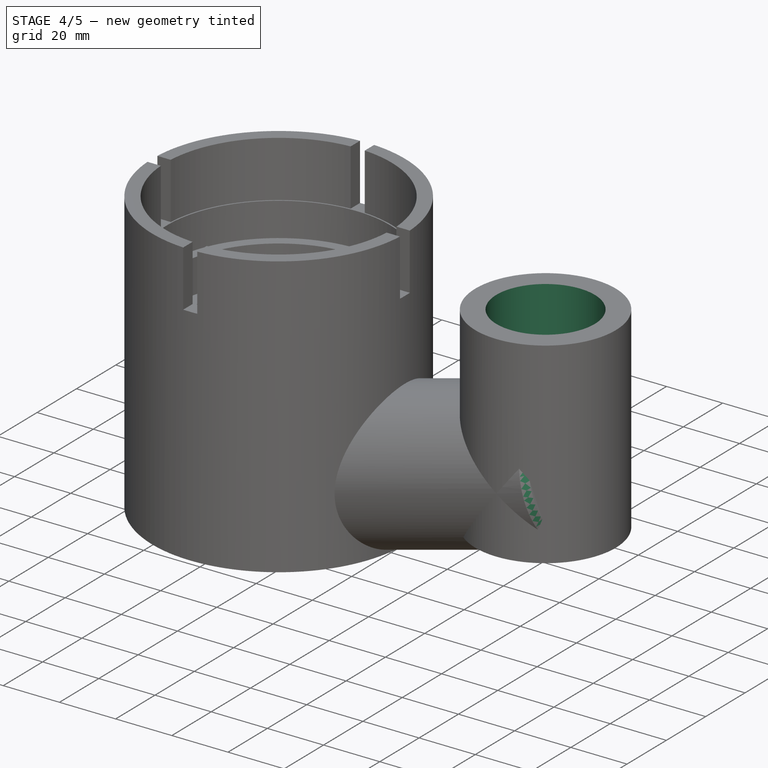
[diagram: stage 4 of 5 — iso view after this stage's code; geometry added in this stage tinted green]
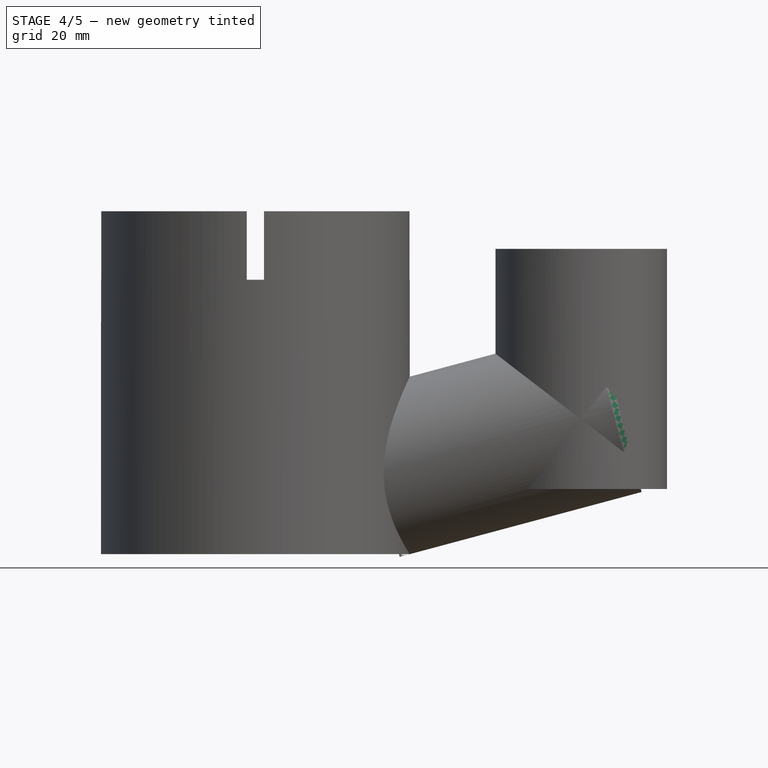
[diagram: stage 4 of 5 — front view after this stage's code; geometry added in this stage tinted green]
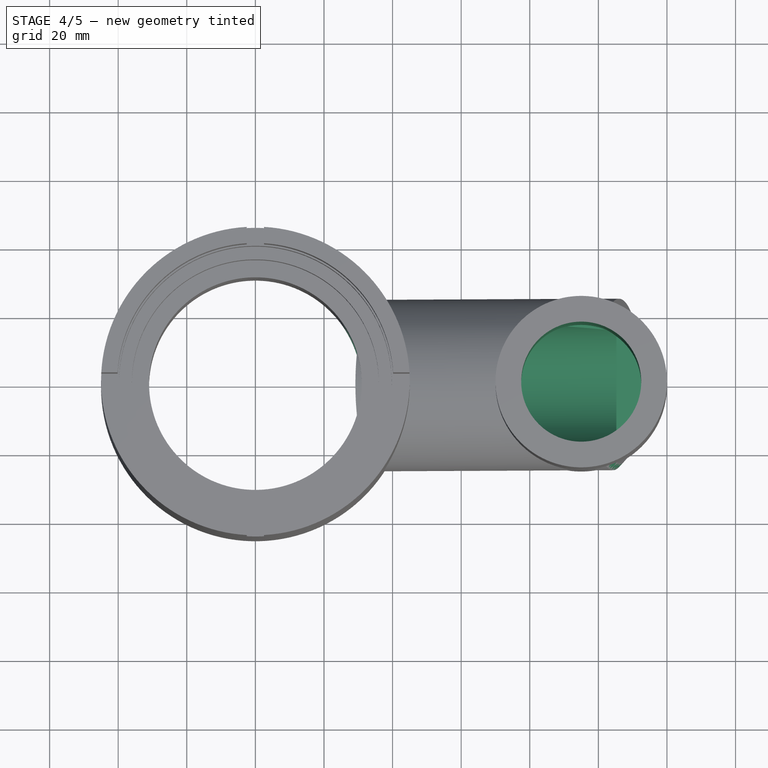
[diagram: stage 4 of 5 — top view after this stage's code; geometry added in this stage tinted green]
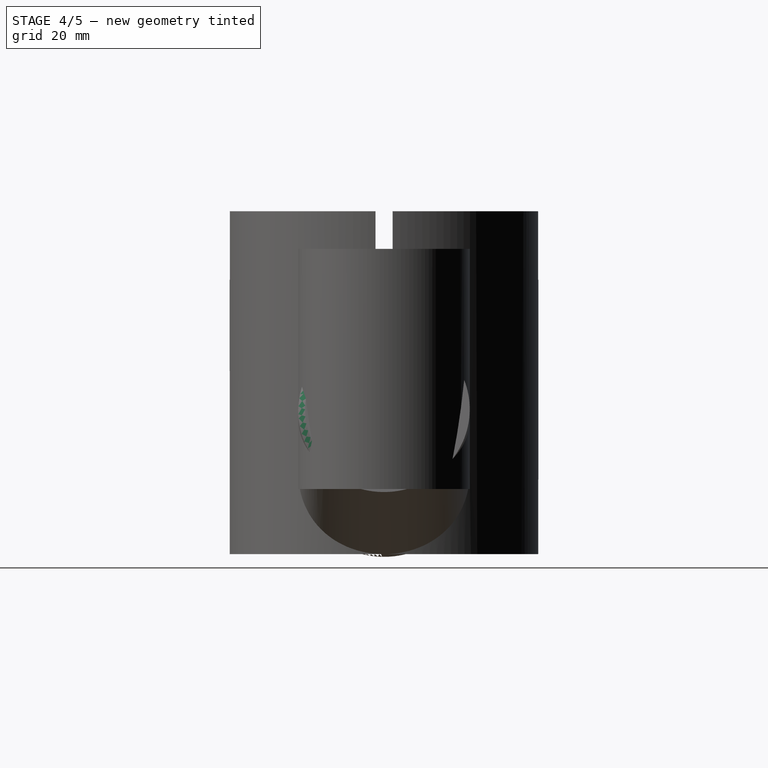
[diagram: stage 4 of 5 — right view after this stage's code; geometry added in this stage tinted green]
FEATURE [Sketcher::SketchObject] Sketch013
  ExternalGeometry = -> [Sketch007]
  FullyConstrained = true
  MapMode = 5
  Placement = pos=(39.0878,-2.4e-15,10.4735) rot=(-0.621515,0.621515,0.476905;4.0316rad)
  Support = -> [Pocket008]
  sketch-geometry (1):
    g0: Circle CenterX=-1.54e-14 CenterY=13.3531 CenterZ=0 NormalX=0 NormalY=0 NormalZ=1 AngleXU=0 Radius=17.5
  constraints (2):
    c: Coincident(g0,g-3)
    c: Diameter(g0) = 35
FEATURE [PartDesign::Pocket] Pocket009
  BaseFeature = -> Pocket008
  Direction = (0.965926,-2e-16,0.258819)
  Length = 70
  Length2 = 20
  Profile = -> Sketch013
  ReferenceAxis = -> Sketch013 [N_Axis]
  Type = 4
FEATURE [Sketcher::SketchObject] Sketch014
  ExternalGeometry = -> [Pocket009]
  FullyConstrained = true
  MapMode = 5
  Placement = pos=(0,0,89) rot=(0,0,1;0rad)
  Support = -> [Pocket009]
  sketch-geometry (1):
    g0: Circle CenterX=95 CenterY=0 CenterZ=0 NormalX=0 NormalY=0 NormalZ=1 AngleXU=0 Radius=17.5
  constraints (2):
    c: Coincident(g0,g-3)
    c: Diameter(g0) = 35
FEATURE [PartDesign::Pocket] Pocket010
  BaseFeature = -> Pocket009
  Direction = (0,0,-1)
  Length = 55
  Length2 = 5
  Profile = -> Sketch014
  ReferenceAxis = -> Sketch014 [N_Axis]
  Type = 0
FEATURE [PartDesign::Chamfer] Chamfer
  Angle = 45
  Base = -> Pocket010 [Edge390]
  BaseFeature = -> Pocket010
  ChamferType = 0
  FlipDirection = false
  Size = 2
  Size2 = 1
  SupportTransform = false
  UseAllEdges = false
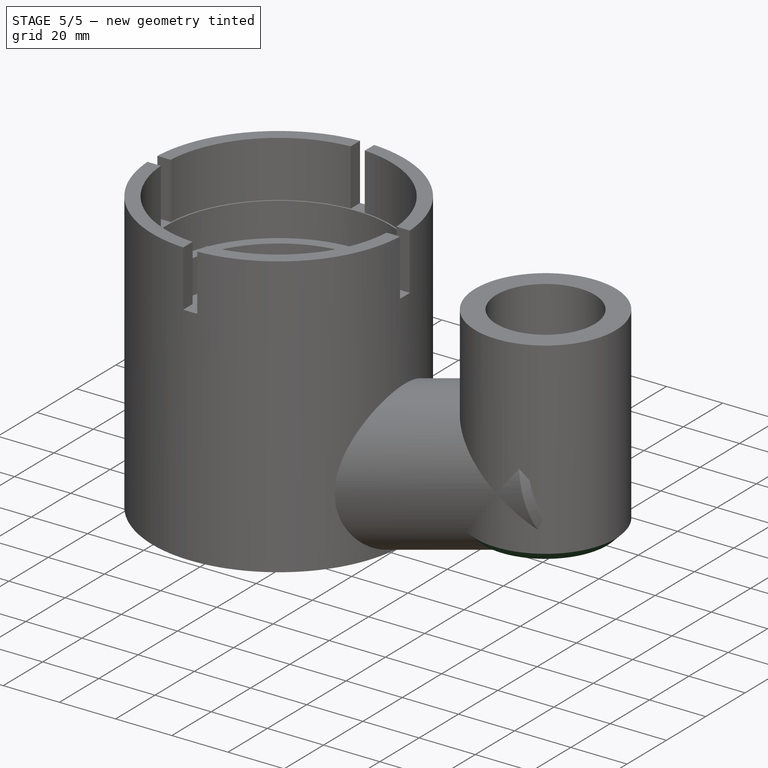
[diagram: stage 5 of 5 — iso view after this stage's code; geometry added in this stage tinted green]
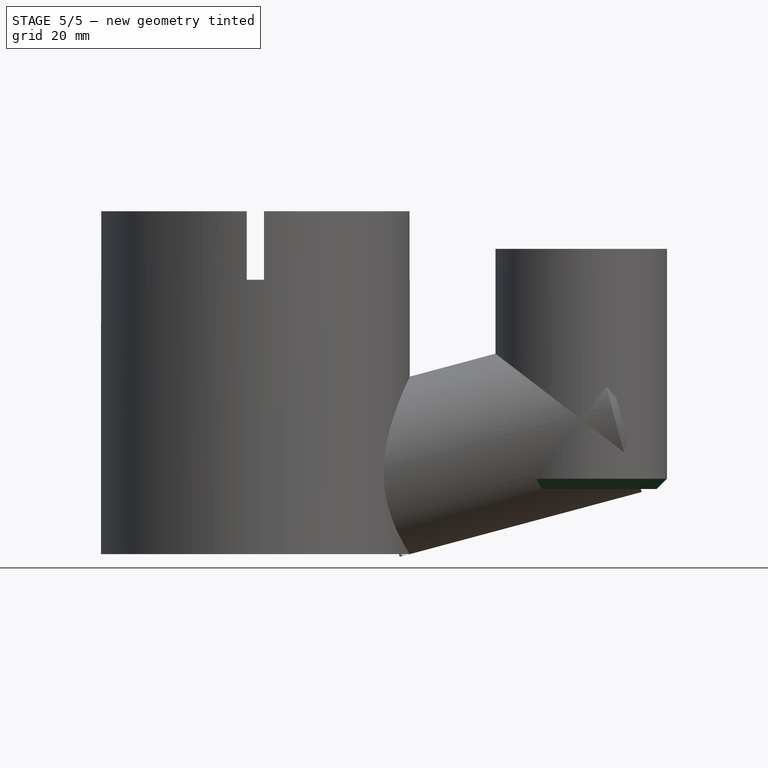
[diagram: stage 5 of 5 — front view after this stage's code; geometry added in this stage tinted green]
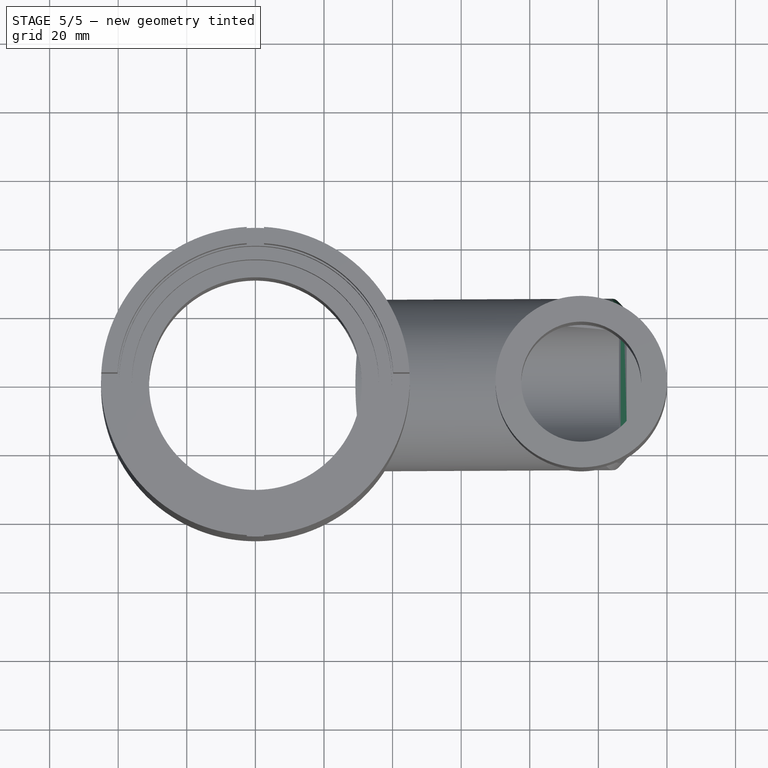
[diagram: stage 5 of 5 — top view after this stage's code; geometry added in this stage tinted green]
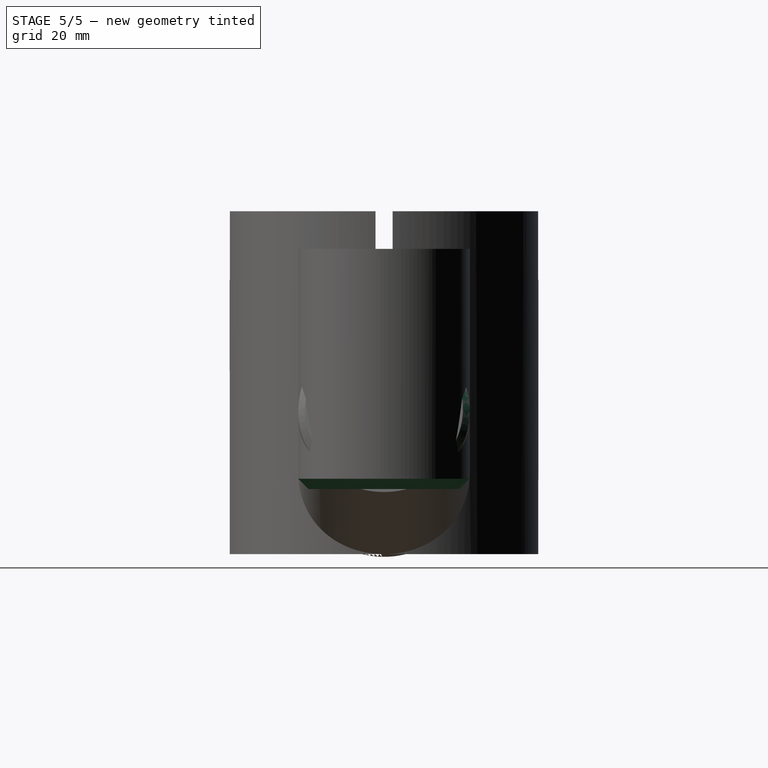
[diagram: stage 5 of 5 — right view after this stage's code; geometry added in this stage tinted green]
FEATURE [PartDesign::Chamfer] Chamfer001
  Angle = 45
  Base = -> Chamfer [Edge30,Edge28]
  BaseFeature = -> Chamfer
  ChamferType = 0
  FlipDirection = false
  Size = 2
  Size2 = 1
  SupportTransform = false
  UseAllEdges = false
FEATURE [PartDesign::Chamfer] Chamfer002
  Angle = 45
  Base = -> Chamfer001 [Edge16,Edge11]
  BaseFeature = -> Chamfer001
  ChamferType = 0
  FlipDirection = false
  Size = 3
  Size2 = 1
  SupportTransform = false
  UseAllEdges = false
FEATURE [PartDesign::Chamfer] Chamfer003
  Angle = 45
  Base = -> Chamfer002 [Edge196]
  BaseFeature = -> Chamfer002
  ChamferType = 0
  FlipDirection = false
  Size = 3
  Size2 = 1
  SupportTransform = false
  UseAllEdges = false
FEATURE [PartDesign::Body] Body
  Group = -> [Sketch,Pad,Sketch001,Pocket,Sketch002,Pocket001,Sketch003,Pocket002,Sketch004,Pocket003,DatumPlane,Sketch005,Pocket004,DatumPlane001,Sketch006,Pocket005,DatumPlane002,Sketch007,Pad001,DatumPlane003,Sketch009,Pad002,Sketch012,Pocket008,Sketch013,Pocket009,Sketch014,Pocket010,Chamfer,Chamfer001,Chamfer002,Chamfer003]
  Origin = -> Origin
  Tip = -> Chamfer003
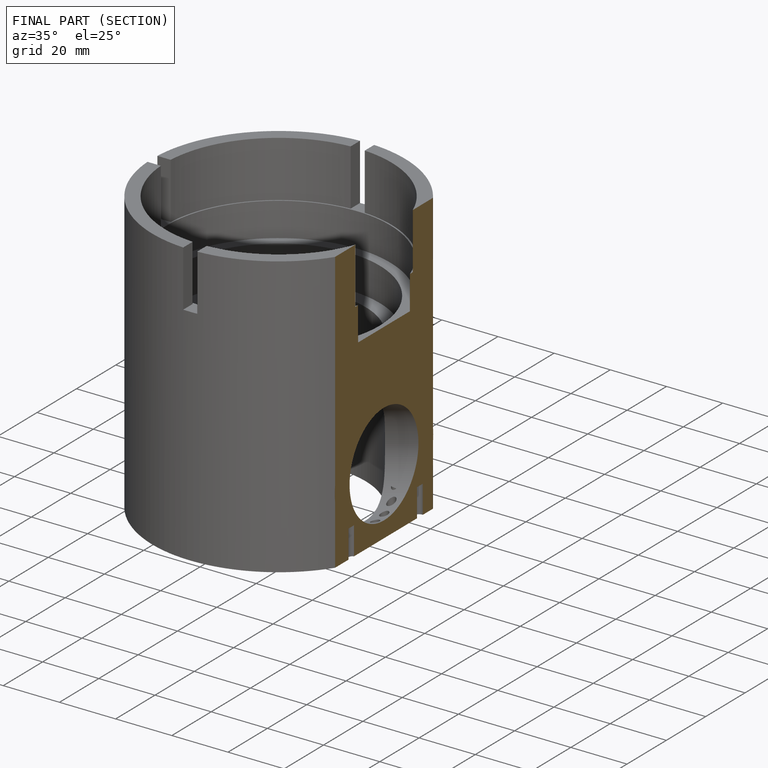
[diagram: finished part — half-section view (interior)]
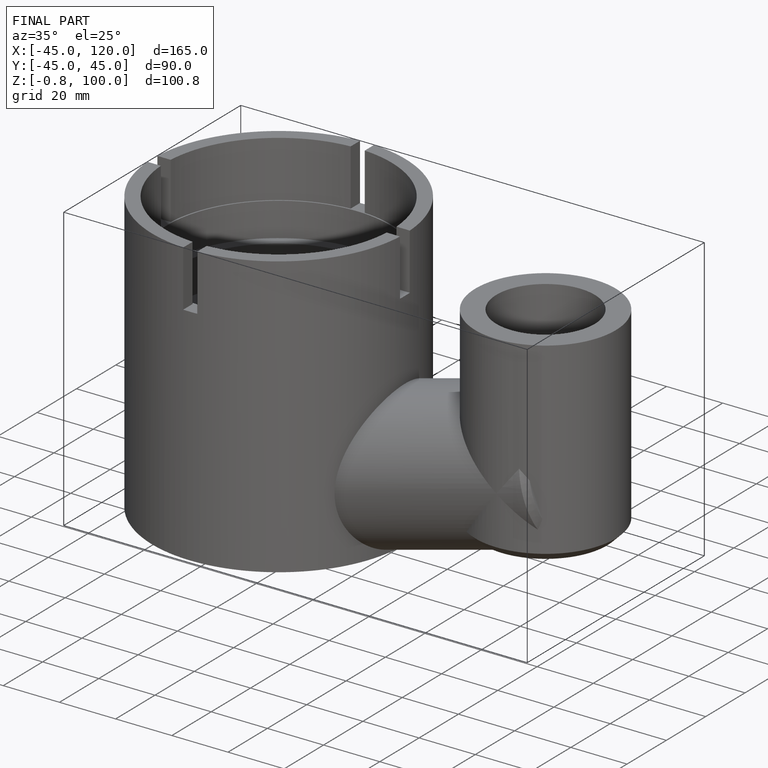
[diagram: finished part — iso view with bounding-box wireframe]
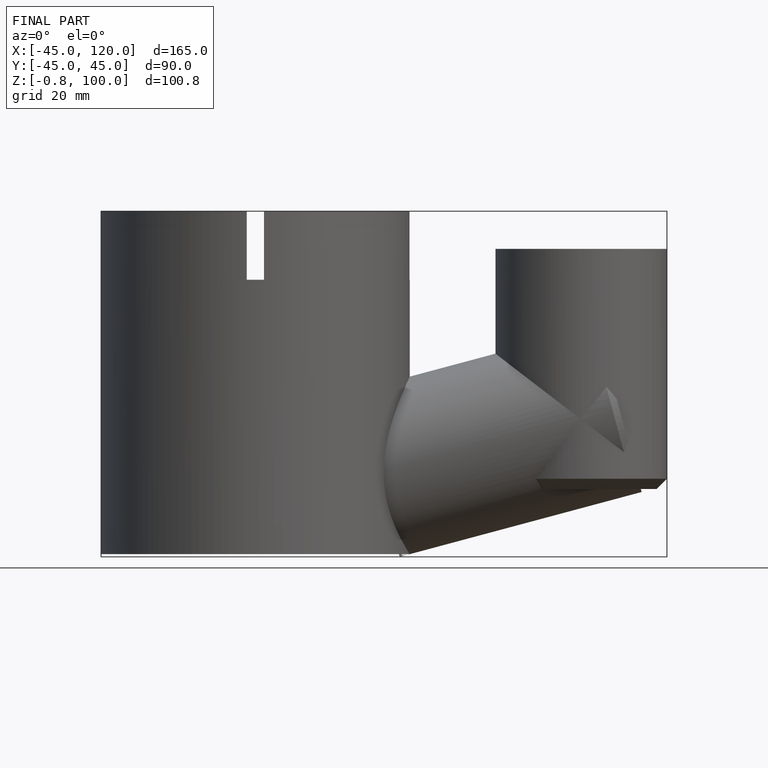
[diagram: finished part — front view with bounding-box wireframe]
